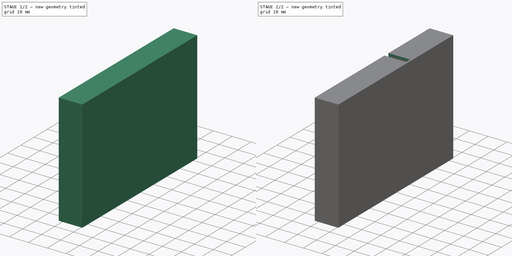
[diagram: build sequence overview — one tinted view per stage of 2, left to right]
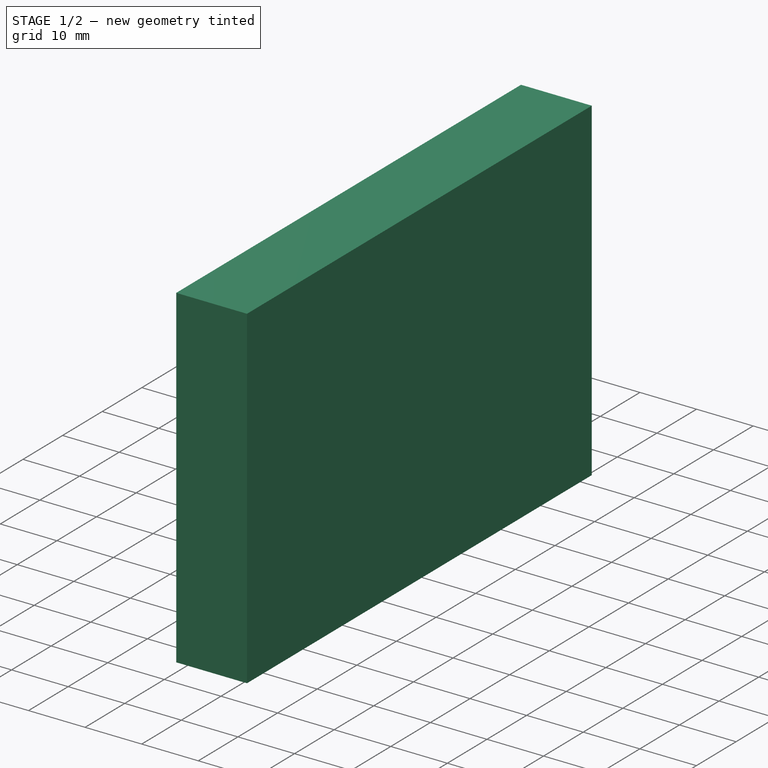
[diagram: stage 1 of 2 — iso view after this stage's code; geometry added in this stage tinted green]
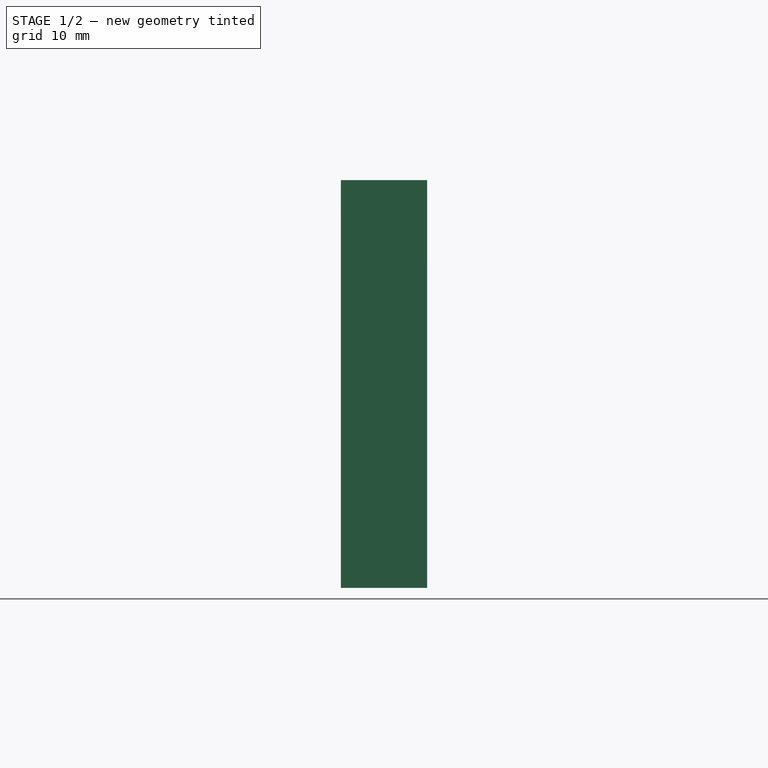
[diagram: stage 1 of 2 — front view after this stage's code; geometry added in this stage tinted green]
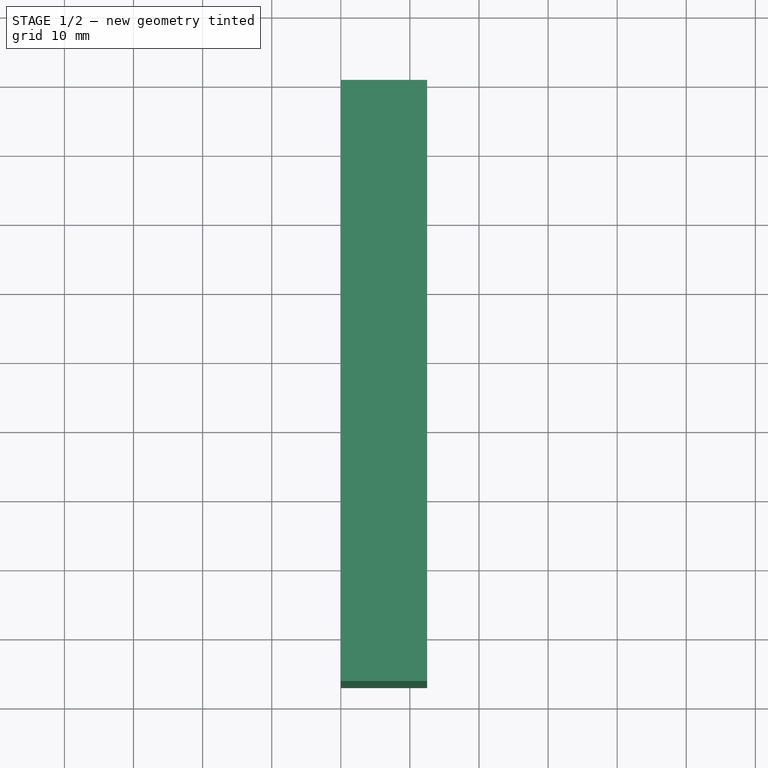
[diagram: stage 1 of 2 — top view after this stage's code; geometry added in this stage tinted green]
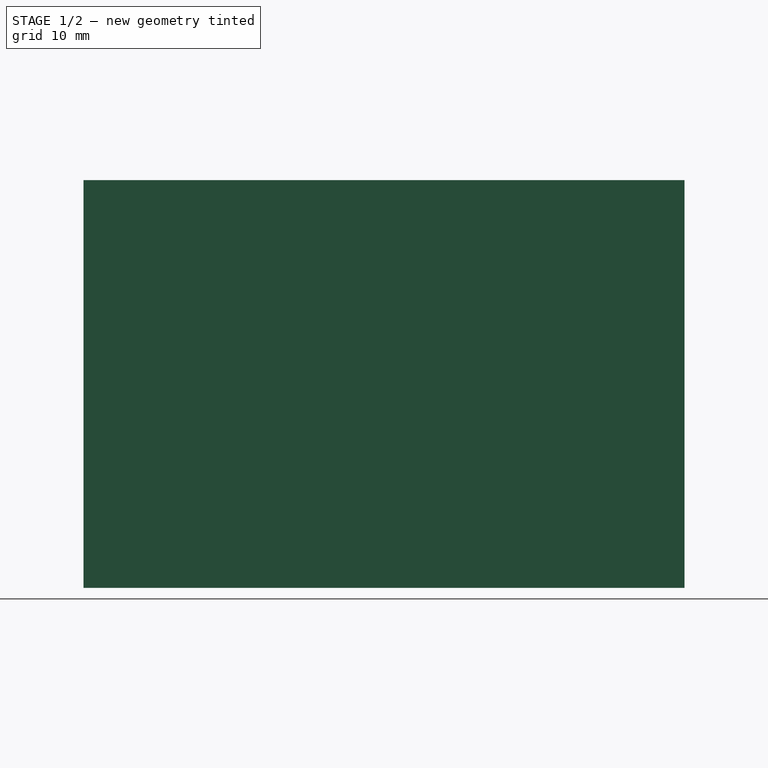
[diagram: stage 1 of 2 — right view after this stage's code; geometry added in this stage tinted green]
FCSTD DOCUMENT  (FreeCAD 0.16R6707 (Git))
Label: 25_Card_Holder
License: All rights reserved
LicenseURL: http://en.wikipedia.org/wiki/All_rights_reserved
objects: Sketcher::SketchObject×4, PartDesign::Pad×2, PartDesign::Pocket×2
note: 12 computed .brp shape members not serialized (recipe doc carries the construction recipe); baked Part::Feature solids carry a one-line shape summary decoded from their .brp

FEATURE [Sketcher::SketchObject] Sketch
  Placement = pos=(0,0,0) rot=(1,0,0;1.5708rad)
  sketch-geometry (8):
    g0: LineSegment StartX=0 StartY=0 StartZ=0 EndX=12.5 EndY=0 EndZ=0
    g1: LineSegment StartX=12.5 StartY=0 StartZ=0 EndX=12.5 EndY=59 EndZ=0
    g2: LineSegment StartX=12.5 StartY=59 StartZ=0 EndX=0 EndY=59 EndZ=0
    g3: LineSegment StartX=0 StartY=59 StartZ=0 EndX=0 EndY=0 EndZ=0
    g4: LineSegment StartX=1.5 StartY=1 StartZ=0 EndX=11.5 EndY=1 EndZ=0
    g5: LineSegment StartX=11.5 StartY=1 StartZ=0 EndX=11.5 EndY=58 EndZ=0
    g6: LineSegment StartX=11.5 StartY=58 StartZ=0 EndX=1.5 EndY=58 EndZ=0
    g7: LineSegment StartX=1.5 StartY=58 StartZ=0 EndX=1.5 EndY=1 EndZ=0
  constraints (23):
    c: Coincident(g0,g1)
    c: Coincident(g1,g2)
    c: Coincident(g2,g3)
    c: Coincident(g3,g0)
    c: Horizontal(g0)
    c: Horizontal(g2)
    c: Vertical(g1)
    c: Vertical(g3)
    c: Coincident(g0,g-1)
    c: Coincident(g4,g5)
    c: Coincident(g5,g6)
    c: Coincident(g6,g7)
    c: Coincident(g7,g4)
    c: Horizontal(g4)
    c: Horizontal(g6)
    c: Vertical(g5)
    c: Vertical(g7)
    c: DistanceY(g4) = 1
    c: DistanceX(g-1,g4) = 1.5
    c: DistanceY(g5,g1) = 1
    c: DistanceX(g5,g1) = 1
    c: Distance(g4) = 10
    c: Distance(g7) = 57
FEATURE [PartDesign::Pad] Pad
  Length = 85
  Length2 = 100
  Placement = pos=(0,0,0) rot=(1,0,0;1.5708rad)
  Sketch = -> Sketch
  Type = 0
FEATURE [Sketcher::SketchObject] Sketch001
  ExternalGeometry = -> [Pad]
  Placement = pos=(0,-85,0) rot=(1,0,0;1.5708rad)
  Support = -> Pad [Face10]
  sketch-geometry (4):
    g0: LineSegment StartX=0 StartY=0 StartZ=0 EndX=12.5 EndY=0 EndZ=0
    g1: LineSegment StartX=12.5 StartY=0 StartZ=0 EndX=12.5 EndY=59 EndZ=0
    g2: LineSegment StartX=12.5 StartY=59 StartZ=0 EndX=0 EndY=59 EndZ=0
    g3: LineSegment StartX=0 StartY=59 StartZ=0 EndX=0 EndY=0 EndZ=0
  constraints (10):
    c: Coincident(g0,g1)
    c: Coincident(g1,g2)
    c: Coincident(g2,g3)
    c: Coincident(g3,g0)
    c: Horizontal(g0)
    c: Horizontal(g2)
    c: Vertical(g1)
    c: Vertical(g3)
    c: Coincident(g0,g-1)
    c: Coincident(g1,g-3)
FEATURE [PartDesign::Pad] Pad001
  Length = 2
  Length2 = 100
  Placement = pos=(0,0,0) rot=(1,0,0;1.5708rad)
  Sketch = -> Sketch001
  Type = 0
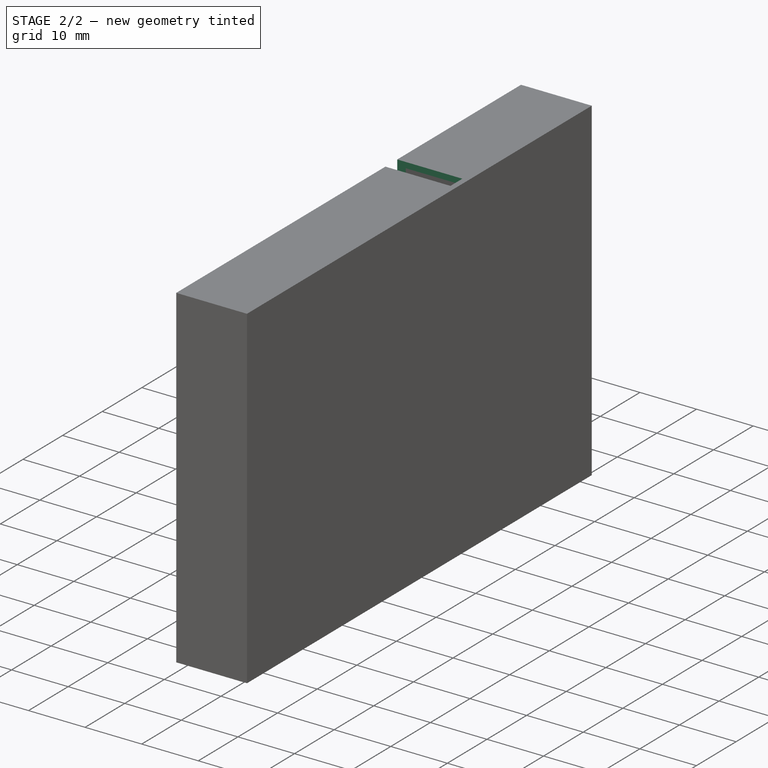
[diagram: stage 2 of 2 — iso view after this stage's code; geometry added in this stage tinted green]
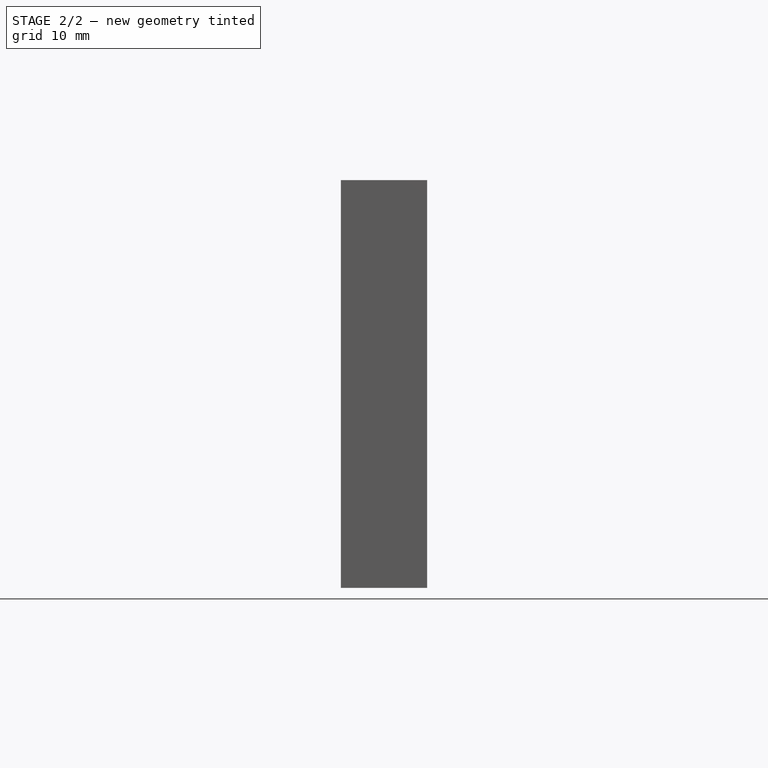
[diagram: stage 2 of 2 — front view after this stage's code; geometry added in this stage tinted green]
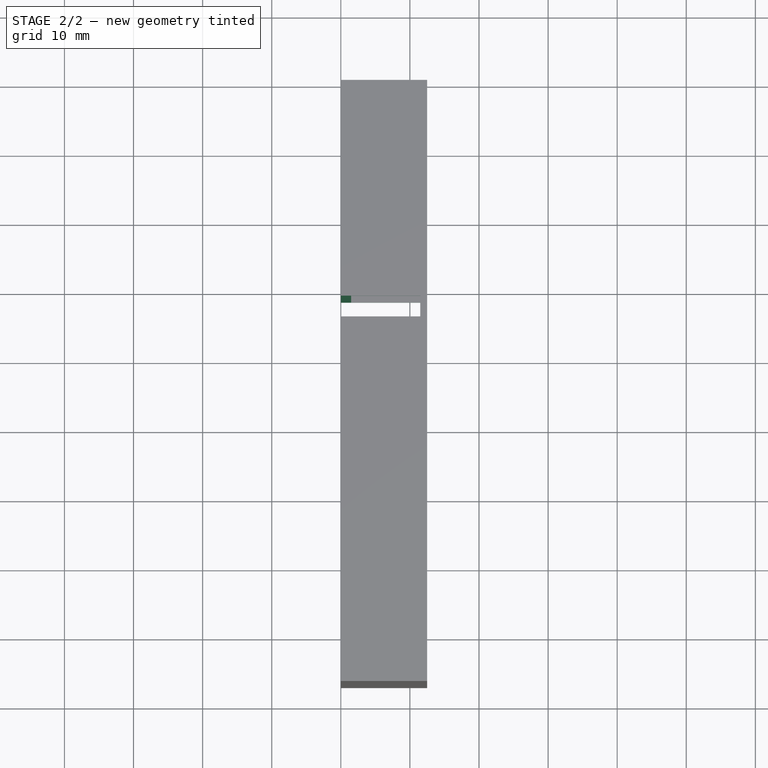
[diagram: stage 2 of 2 — top view after this stage's code; geometry added in this stage tinted green]
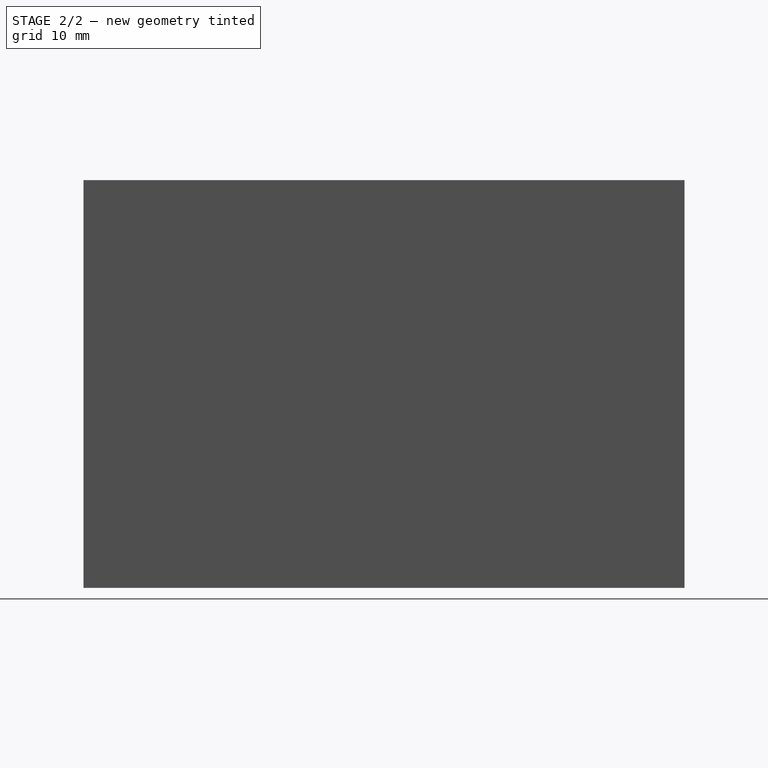
[diagram: stage 2 of 2 — right view after this stage's code; geometry added in this stage tinted green]
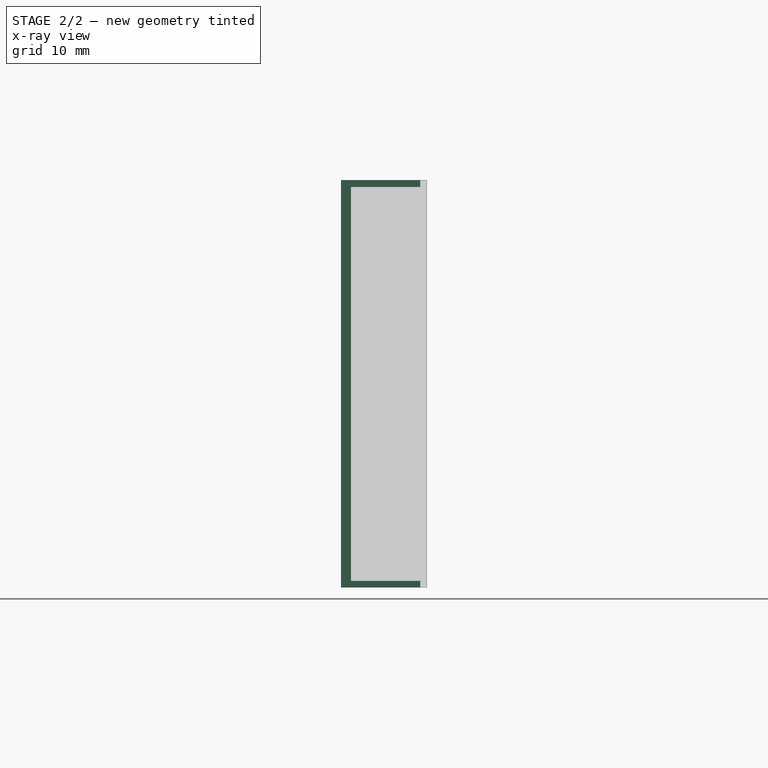
[diagram: stage 2 of 2 — x-ray composite at the front view; earlier geometry ghosted, this stage's added geometry solid]
FEATURE [Sketcher::SketchObject] Sketch002
  ExternalGeometry = -> [Pad001]
  Placement = pos=(0,0,0) rot=(0.707107,0,-0.707107;3.14159rad)
  Support = -> Pad001 [Face5]
  sketch-geometry (5):
    g0: Ellipse CenterX=-29.5 CenterY=0 CenterZ=0 NormalX=0 NormalY=0 NormalZ=1 MajorRadius=16 MinorRadius=10 AngleXU=-1.5708
    g1: LineSegment [constr] StartX=-29.5 StartY=-16 StartZ=0 EndX=-29.5 EndY=16 EndZ=0
    g2: LineSegment [constr] StartX=-19.5 StartY=0 StartZ=0 EndX=-39.5 EndY=0 EndZ=0
    g3: GeomPoint [constr] X=-29.5 Y=-12.49 Z=0
    g4: GeomPoint [constr] X=-29.5 Y=12.49 Z=0
  constraints (6):
    c: InternalAlignment(g1-g4 -> g0) x4
    c: Distance(g2) = 20
    c: Distance(g0,g1) = 16
    c: Horizontal(g2)
    c: PointOnObject(g0,g-3)
    c: Symmetric(g-3,g-1,g0)
FEATURE [PartDesign::Pocket] Pocket
  Length = 5
  Placement = pos=(0,0,0) rot=(1,0,0;1.5708rad)
  Sketch = -> Sketch002
  Type = 0
FEATURE [Sketcher::SketchObject] Sketch003
  ExternalGeometry = -> [Pocket]
  Placement = pos=(0,0,59) rot=(0,0,1;3.14159rad)
  Support = -> Pocket [Face4]
  sketch-geometry (4):
    g0: LineSegment StartX=-11.5 StartY=34.2293 StartZ=0 EndX=9.41562 EndY=34.2293 EndZ=0
    g1: LineSegment StartX=9.41562 StartY=34.2293 StartZ=0 EndX=9.41562 EndY=31.2293 EndZ=0
    g2: LineSegment StartX=9.41562 StartY=31.2293 StartZ=0 EndX=-11.5 EndY=31.2293 EndZ=0
    g3: LineSegment StartX=-11.5 StartY=31.2293 StartZ=0 EndX=-11.5 EndY=34.2293 EndZ=0
  constraints (10):
    c: Coincident(g0,g1)
    c: Coincident(g1,g2)
    c: Coincident(g2,g3)
    c: Coincident(g3,g0)
    c: Horizontal(g0)
    c: Horizontal(g2)
    c: Vertical(g1)
    c: Vertical(g3)
    c: PointOnObject(g0,g-3)
    c: Distance(g1) = 3
FEATURE [PartDesign::Pocket] Pocket001
  Length = 5
  Placement = pos=(0,0,0) rot=(1,0,0;1.5708rad)
  Sketch = -> Sketch003
  Type = 1
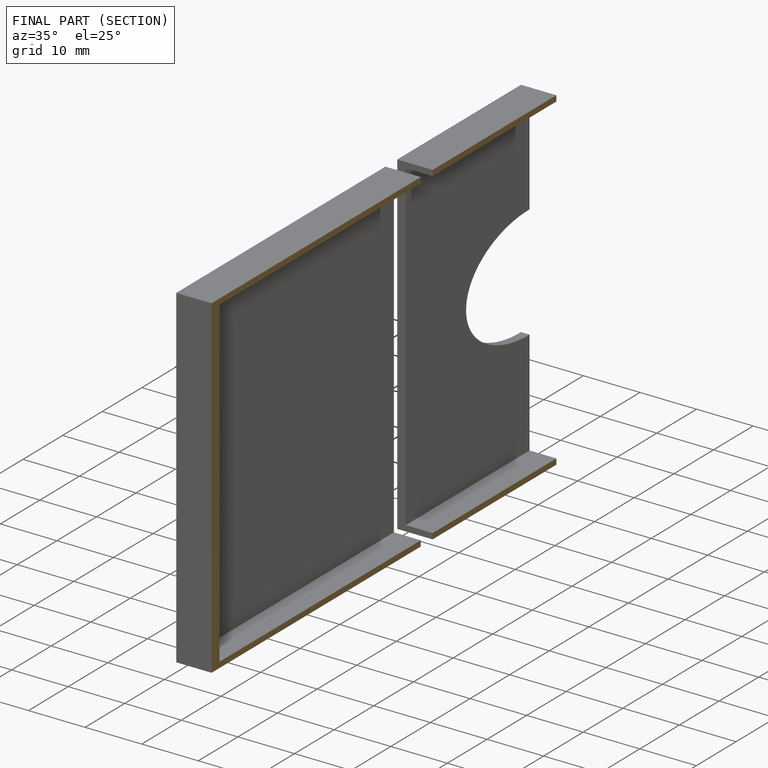
[diagram: finished part — half-section view (interior)]
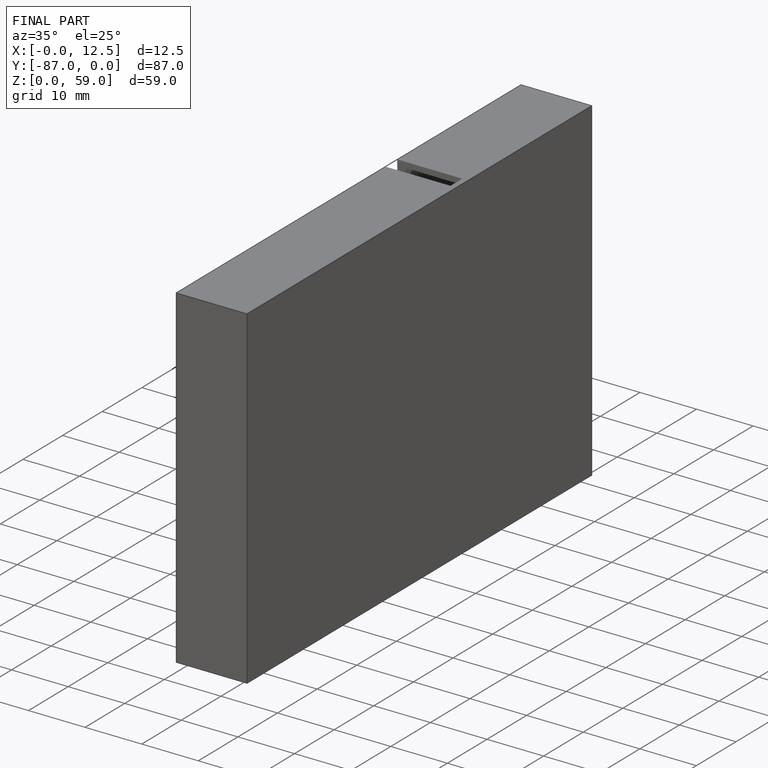
[diagram: finished part — iso view with bounding-box wireframe]
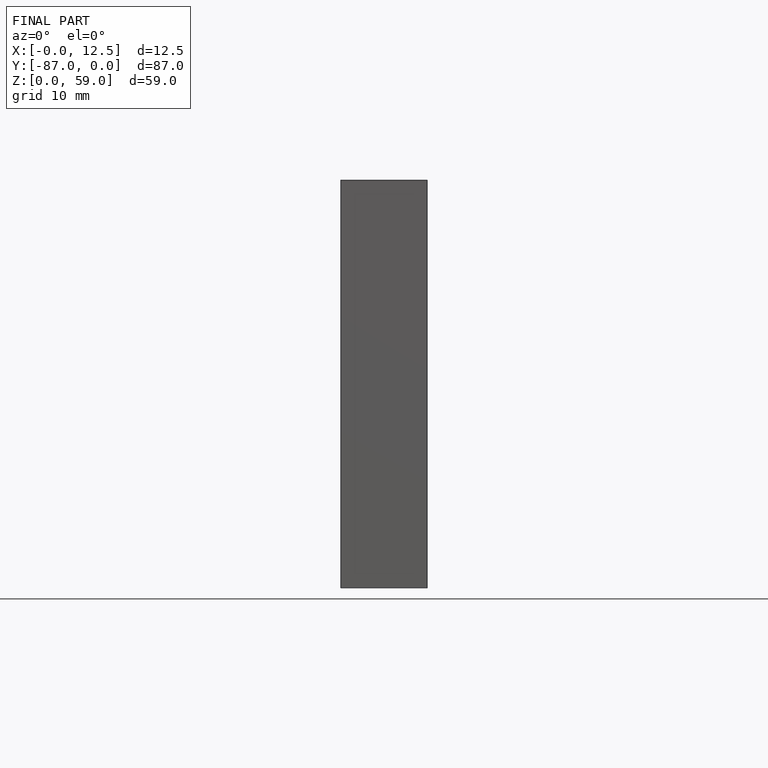
[diagram: finished part — front view with bounding-box wireframe]
